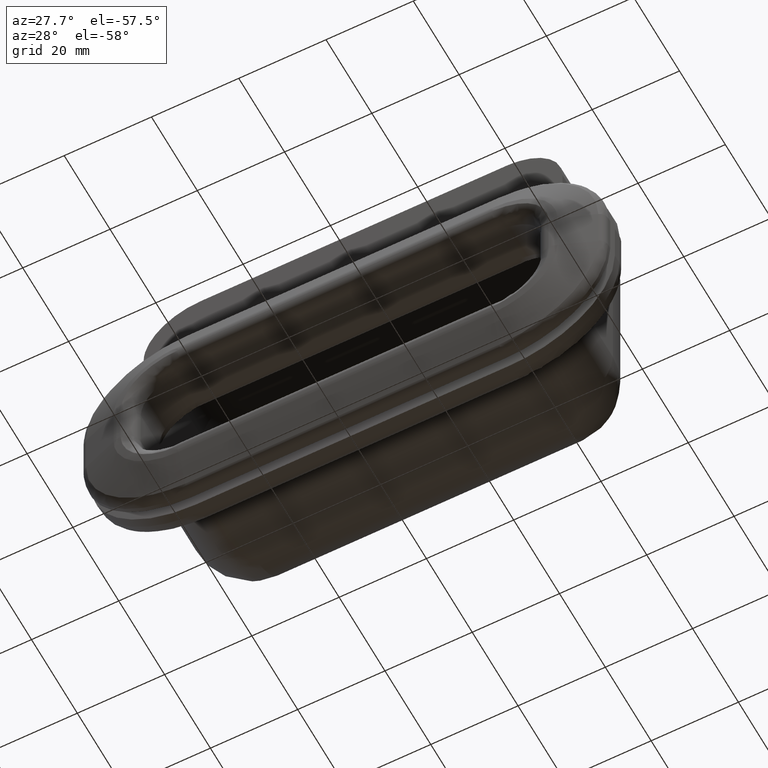
[diagram: clean part render]
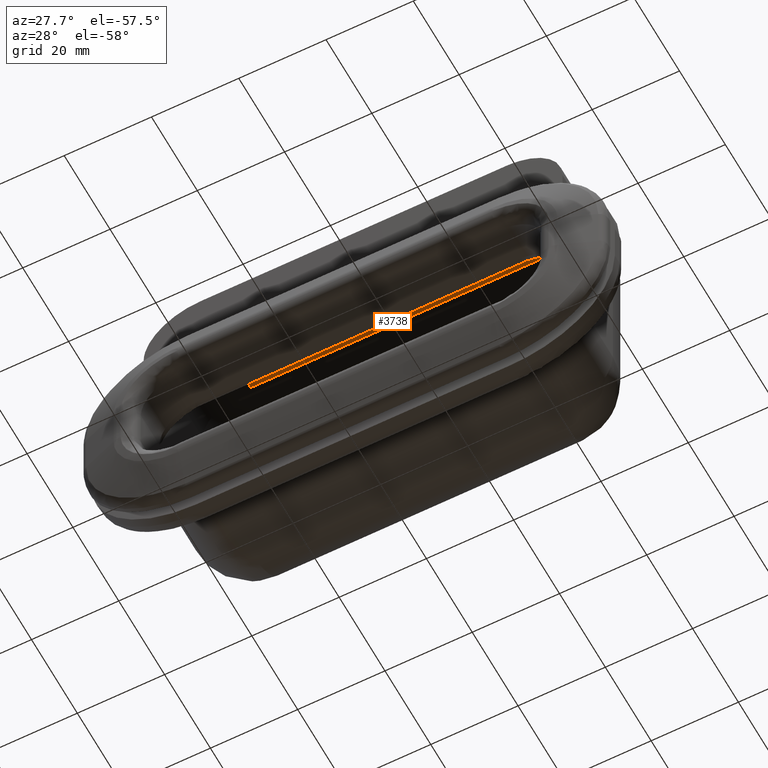
[diagram: same view with one face highlighted and labeled with its STEP entity id]
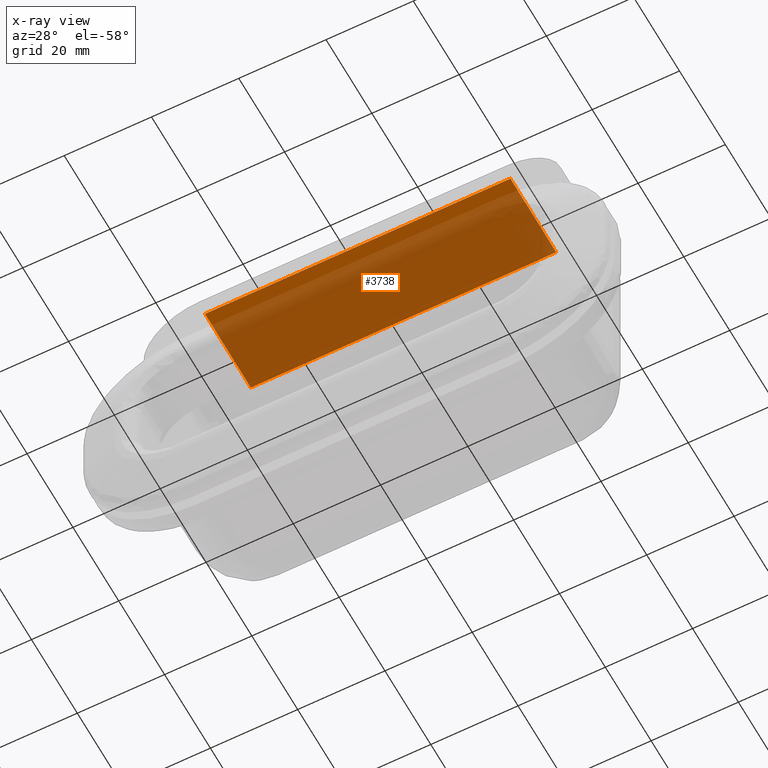
[diagram: x-ray of the same camera — body ghosted, the highlighted face saturated]
A machine part, auxiliary view. The second image highlights one B-rep face of the part: STEP entity #3738.
The next image is the same camera in x-ray: the body ghosted, the highlighted face saturated — about 81% of this face is hidden behind the body in this view.
In plain terms, the highlighted face is a freeform B-spline surface patch.
Its self-contained STEP definition (entity closure, byte-faithful):
#3304=CARTESIAN_POINT('',(35.0,30.0,45.0));
#3305=VERTEX_POINT('',#3304);
#3364=CARTESIAN_POINT('',(35.0,10.0,45.0));
#3365=VERTEX_POINT('',#3364);
#3381=CARTESIAN_POINT('',(35.0,30.0,45.0));
#3382=CARTESIAN_POINT('',(35.0,10.0,45.0));
#3383=QUASI_UNIFORM_CURVE('',1,(#3381,#3382),.UNSPECIFIED.,.F.,.U.);
#3384=EDGE_CURVE('',#3305,#3365,#3383,.T.);
#3436=CARTESIAN_POINT('',(-35.0,30.0,45.0));
#3437=VERTEX_POINT('',#3436);
#3483=CARTESIAN_POINT('',(-35.0,10.0,45.0));
#3484=VERTEX_POINT('',#3483);
#3504=CARTESIAN_POINT('',(-35.0,10.0,45.0));
#3505=CARTESIAN_POINT('',(-35.0,30.0,45.0));
#3506=QUASI_UNIFORM_CURVE('',1,(#3504,#3505),.UNSPECIFIED.,.F.,.U.);
#3507=EDGE_CURVE('',#3484,#3437,#3506,.T.);
#3613=CARTESIAN_POINT('',(-35.0,30.0,45.0));
#3614=CARTESIAN_POINT('',(35.0,30.0,45.0));
#3615=QUASI_UNIFORM_CURVE('',1,(#3613,#3614),.UNSPECIFIED.,.F.,.U.);
#3616=EDGE_CURVE('',#3437,#3305,#3615,.T.);
#3723=CARTESIAN_POINT('',(-38.496499864326417,9.001000038763884,45.0));
#3724=CARTESIAN_POINT('',(38.496501741872727,9.001000038763884,45.0));
#3725=CARTESIAN_POINT('',(-38.496499864326417,30.999000497677919,45.0));
#3726=CARTESIAN_POINT('',(38.496501741872727,30.999000497677919,45.0));
#3727=B_SPLINE_SURFACE_WITH_KNOTS('',1,1,((#3723,#3725),(#3724,#3726)),.UNSPECIFIED.,.F.,.F.,.U.,(2,2),(2,2),(0.0,76.993001606199158),(0.0,21.998000458914039),.UNSPECIFIED.);
#3728=CARTESIAN_POINT('',(35.0,10.0,45.0));
#3729=CARTESIAN_POINT('',(-35.0,10.0,45.0));
#3730=QUASI_UNIFORM_CURVE('',1,(#3728,#3729),.UNSPECIFIED.,.F.,.U.);
#3731=EDGE_CURVE('',#3365,#3484,#3730,.T.);
#3732=ORIENTED_EDGE('',*,*,#3731,.T.);
#3733=ORIENTED_EDGE('',*,*,#3507,.T.);
#3734=ORIENTED_EDGE('',*,*,#3616,.T.);
#3735=ORIENTED_EDGE('',*,*,#3384,.T.);
#3736=EDGE_LOOP('',(#3732,#3733,#3734,#3735));
#3737=FACE_OUTER_BOUND('',#3736,.T.);
#3738=ADVANCED_FACE('',(#3737),#3727,.F.);